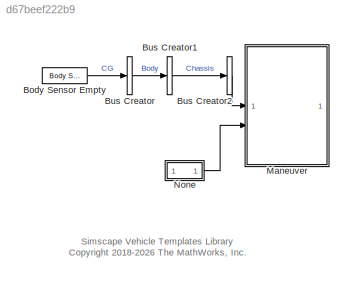
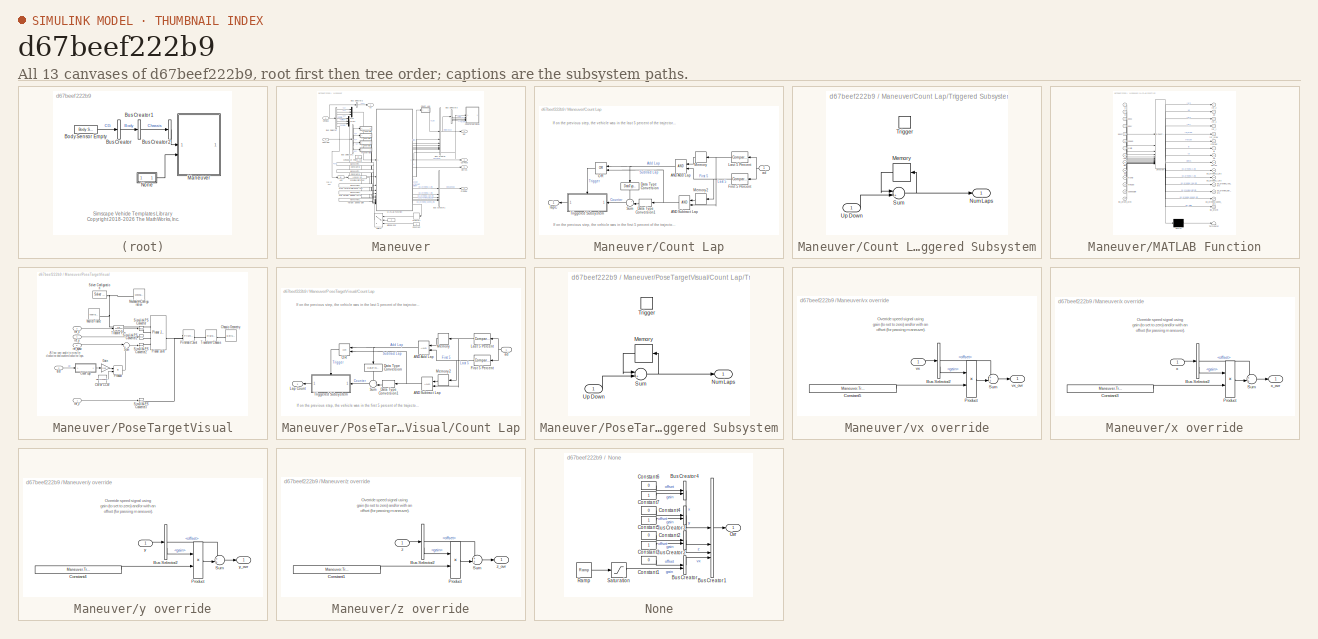
[diagram: thumbnail index - all 13 canvases of the model, root first then tree order]
MODEL slx_d67beef222b9
KIND library
CONFIG SolverName = VariableStepAuto
BLOCK [Reference] Body Sensor Empty  REF=sm_vehicle_utilities_lib/Body Sensor Empty  (lib defined in slx_7901a99a1966, slx_bde73e06ff5b)
  SourceBlock = sm_vehicle_utilities_lib/Body Sensor Empty
BLOCK [BusCreator] Bus Creator
  DisplayOption = bar
  InheritFromInputs = on
  Inputs = 1
BLOCK [BusCreator] Bus Creator1
  DisplayOption = bar
  InheritFromInputs = on
  Inputs = 1
BLOCK [BusCreator] Bus Creator2
  DisplayOption = bar
  InheritFromInputs = on
  Inputs = 1
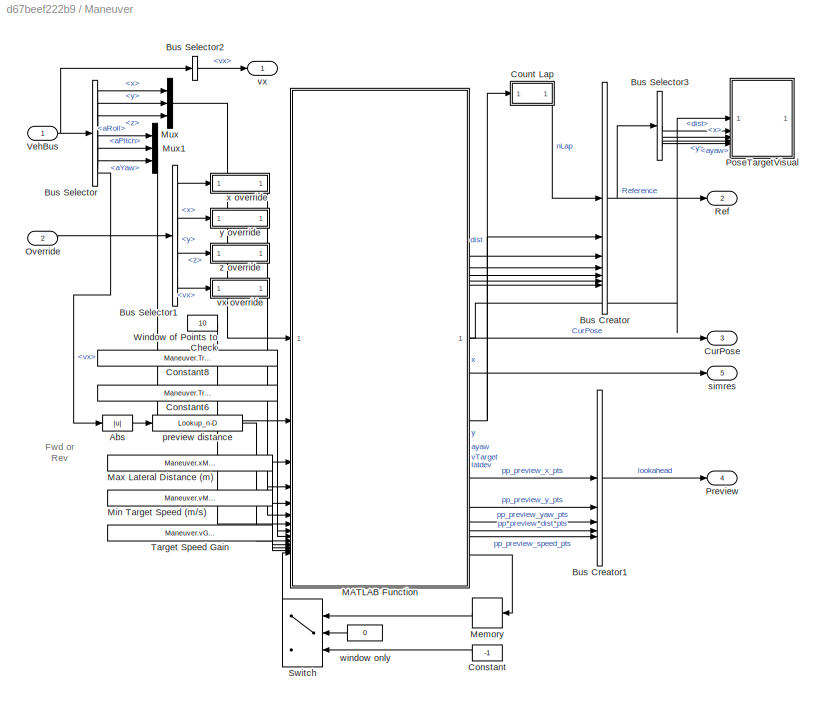
BLOCK [SubSystem] Maneuver
BLOCK [Abs] Maneuver/Abs
  SaturateOnIntegerOverflow = off
  ZeroCross = off
BLOCK [BusCreator] Maneuver/Bus Creator
  DisplayOption = bar
  InheritFromInputs = on
  Inputs = 7
BLOCK [BusCreator] Maneuver/Bus Creator1
  DisplayOption = bar
  InheritFromInputs = on
  Inputs = 5
BLOCK [BusSelector] Maneuver/Bus Selector
  OutputSignals = World.x,World.y,World.z,World.aRoll,World.aPitch,World.aYaw,Chassis.Body.CG.vx
BLOCK [BusSelector] Maneuver/Bus Selector1
  OutputSignals = x,y,z,vx
BLOCK [BusSelector] Maneuver/Bus Selector2
  OutputSignals = Chassis.Body.CG.vx
BLOCK [BusSelector] Maneuver/Bus Selector3
  OutputSignals = dist,x,y,ayaw
BLOCK [Constant] Maneuver/Constant
  Value = -1
BLOCK [Constant] Maneuver/Constant6
  Value = Maneuver.Trajectory.xTrajectory.Value
BLOCK [Constant] Maneuver/Constant8
  Value = Maneuver.Trajectory.aYaw.Value
BLOCK [SubSystem] Maneuver/Count Lap
BLOCK [Logic] Maneuver/Count Lap/AND Add Lap
  AllPortsSameDT = off
  IconShape = distinctive
  OutDataTypeStr = boolean
BLOCK [Logic] Maneuver/Count Lap/AND Subtract Lap
  AllPortsSameDT = off
  IconShape = distinctive
  OutDataTypeStr = boolean
BLOCK [DataTypeConversion] Maneuver/Count Lap/Data Type Conversion
  NameLocation = left
  RndMeth = Floor
  SaturateOnIntegerOverflow = off
BLOCK [DataTypeConversion] Maneuver/Count Lap/Data Type Conversion1
  NameLocation = top
  RndMeth = Floor
  SaturateOnIntegerOverflow = off
BLOCK [Reference] Maneuver/Count Lap/First 5 Percent  REF=simulink/Logic and Bit
Operations/Compare
To Constant
  SourceBlock = simulink/Logic and Bit\nOperations/Compare\nTo Constant
  SourceType = Compare To Constant
BLOCK [Reference] Maneuver/Count Lap/Last 5 Percent  REF=simulink/Logic and Bit
Operations/Compare
To Constant
  NameLocation = top
  SourceBlock = simulink/Logic and Bit\nOperations/Compare\nTo Constant
  SourceType = Compare To Constant
BLOCK [Memory] Maneuver/Count Lap/Memory
  InitialCondition = false
  NameLocation = top
BLOCK [Memory] Maneuver/Count Lap/Memory2
  InitialCondition = false
  NameLocation = top
BLOCK [Logic] Maneuver/Count Lap/OR
  AllPortsSameDT = off
  IconShape = distinctive
  Operator = OR
  OutDataTypeStr = boolean
BLOCK [Sum] Maneuver/Count Lap/Sum
  Inputs = +-|
  NameLocation = top
BLOCK [SubSystem] Maneuver/Count Lap/Triggered Subsystem
  TreatAsAtomicUnit = on
BLOCK [Memory] Maneuver/Count Lap/Triggered Subsystem/Memory
  InheritSampleTime = on
  NameLocation = top
BLOCK [Outport] Maneuver/Count Lap/Triggered Subsystem/Num Laps
  VectorParamsAs1DForOutWhenUnconnected = off
BLOCK [Sum] Maneuver/Count Lap/Triggered Subsystem/Sum
  Inputs = |++
BLOCK [TriggerPort] Maneuver/Count Lap/Triggered Subsystem/Trigger
  StatesWhenEnabling = held
  VariantControl = Variant
  ZeroCross = off
BLOCK [Inport] Maneuver/Count Lap/Triggered Subsystem/Up Down
BLOCK [Inport] Maneuver/Count Lap/ad
BLOCK [Outport] Maneuver/Count Lap/lapC
  VectorParamsAs1DForOutWhenUnconnected = off
BLOCK [Outport] Maneuver/CurPose
  Port = 3
  VectorParamsAs1DForOutWhenUnconnected = off
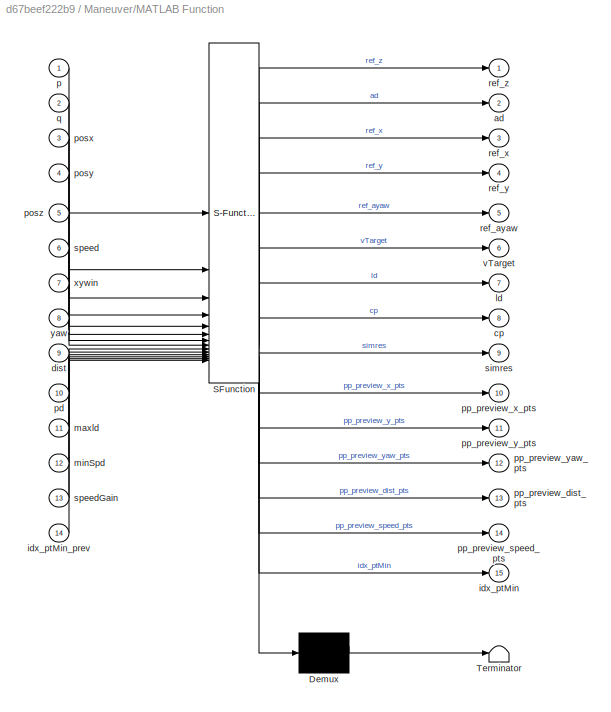
BLOCK [SubSystem] Maneuver/MATLAB Function
  ErrorFcn = Stateflow.Translate.translate
  PermitHierarchicalResolution = ExplicitOnly
  SFBlockType = MATLAB Function
  SystemSampleTime = 0.1
BLOCK [Demux] Maneuver/MATLAB Function/ Demux 
  Outputs = 1
BLOCK [S-Function] Maneuver/MATLAB Function/ SFunction 
  EnableBusSupport = off
  FunctionName = sf_sfun
  Parameters = nPreviewPoints
  PortCounts = [14 16]
  SFcnIsStateOwnerBlock = off
  SFunctionDeploymentMode = off
  Tag = Stateflow S-Function 1
BLOCK [Terminator] Maneuver/MATLAB Function/ Terminator 
BLOCK [Outport] Maneuver/MATLAB Function/ad
  Port = 2
  VectorParamsAs1DForOutWhenUnconnected = off
BLOCK [Outport] Maneuver/MATLAB Function/cp
  Port = 8
  VectorParamsAs1DForOutWhenUnconnected = off
BLOCK [Inport] Maneuver/MATLAB Function/dist
  Port = 9
BLOCK [Outport] Maneuver/MATLAB Function/idx_ptMin
  Port = 15
  VectorParamsAs1DForOutWhenUnconnected = off
BLOCK [Inport] Maneuver/MATLAB Function/idx_ptMin_prev
  Port = 14
BLOCK [Outport] Maneuver/MATLAB Function/ld
  Port = 7
  VectorParamsAs1DForOutWhenUnconnected = off
BLOCK [Inport] Maneuver/MATLAB Function/maxld
  Port = 11
BLOCK [Inport] Maneuver/MATLAB Function/minSpd
  Port = 12
BLOCK [Inport] Maneuver/MATLAB Function/p
BLOCK [Inport] Maneuver/MATLAB Function/pd
  Port = 10
BLOCK [Inport] Maneuver/MATLAB Function/posx
  Port = 3
BLOCK [Inport] Maneuver/MATLAB Function/posy
  Port = 4
BLOCK [Inport] Maneuver/MATLAB Function/posz
  Port = 5
BLOCK [Outport] Maneuver/MATLAB Function/pp_preview_dist_pts
  Port = 13
BLOCK [Outport] Maneuver/MATLAB Function/pp_preview_speed_pts
  Port = 14
BLOCK [Outport] Maneuver/MATLAB Function/pp_preview_x_pts
  Port = 10
BLOCK [Outport] Maneuver/MATLAB Function/pp_preview_y_pts
  Port = 11
BLOCK [Outport] Maneuver/MATLAB Function/pp_preview_yaw_pts
  Port = 12
BLOCK [Inport] Maneuver/MATLAB Function/q
  Port = 2
BLOCK [Outport] Maneuver/MATLAB Function/ref_ayaw
  Port = 5
  VectorParamsAs1DForOutWhenUnconnected = off
BLOCK [Outport] Maneuver/MATLAB Function/ref_x
  Port = 3
  VectorParamsAs1DForOutWhenUnconnected = off
BLOCK [Outport] Maneuver/MATLAB Function/ref_y
  Port = 4
  VectorParamsAs1DForOutWhenUnconnected = off
BLOCK [Outport] Maneuver/MATLAB Function/ref_z
  VectorParamsAs1DForOutWhenUnconnected = off
BLOCK [Outport] Maneuver/MATLAB Function/simres
  Port = 9
  VectorParamsAs1DForOutWhenUnconnected = off
BLOCK [Inport] Maneuver/MATLAB Function/speed
  Port = 6
BLOCK [Inport] Maneuver/MATLAB Function/speedGain
  Port = 13
BLOCK [Outport] Maneuver/MATLAB Function/vTarget
  Port = 6
  VectorParamsAs1DForOutWhenUnconnected = off
BLOCK [Inport] Maneuver/MATLAB Function/xywin
  Port = 7
BLOCK [Inport] Maneuver/MATLAB Function/yaw
  Port = 8
BLOCK [Constant] Maneuver/Max Lateral Distance (m)
  Value = Maneuver.xMaxLat.Value
BLOCK [Memory] Maneuver/Memory
  InitialCondition = -1
  NameLocation = top
BLOCK [Constant] Maneuver/Min Target Speed (m//s)
  Value = Maneuver.vMinTarget.Value
BLOCK [Mux] Maneuver/Mux
  DisplayOption = bar
  Inputs = 3
BLOCK [Mux] Maneuver/Mux1
  DisplayOption = bar
  Inputs = 3
BLOCK [Inport] Maneuver/Override
  Port = 2
BLOCK [SubSystem] Maneuver/PoseTargetVisual
BLOCK [Constant] Maneuver/PoseTargetVisual/CW or CCW
  Value = sign(Maneuver.Trajectory.aYaw.Value(end)-Maneuver.Trajectory.aYaw.Value(1))
BLOCK [Reference] Maneuver/PoseTargetVisual/Chassis Geometry  REF=sm_lib/Body Elements/Extruded Solid
  SourceBlock = sm_lib/Body Elements/Extruded Solid
  SourceType = Extruded Solid
BLOCK [SubSystem] Maneuver/PoseTargetVisual/Count Lap
BLOCK [Logic] Maneuver/PoseTargetVisual/Count Lap/AND Add Lap
  AllPortsSameDT = off
  IconShape = distinctive
  OutDataTypeStr = boolean
BLOCK [Logic] Maneuver/PoseTargetVisual/Count Lap/AND Subtract Lap
  AllPortsSameDT = off
  IconShape = distinctive
  OutDataTypeStr = boolean
BLOCK [DataTypeConversion] Maneuver/PoseTargetVisual/Count Lap/Data Type Conversion
  NameLocation = left
  RndMeth = Floor
  SaturateOnIntegerOverflow = off
BLOCK [DataTypeConversion] Maneuver/PoseTargetVisual/Count Lap/Data Type Conversion1
  NameLocation = top
  RndMeth = Floor
  SaturateOnIntegerOverflow = off
BLOCK [Reference] Maneuver/PoseTargetVisual/Count Lap/First 5 Percent  REF=simulink/Logic and Bit
Operations/Compare
To Constant
  SourceBlock = simulink/Logic and Bit\nOperations/Compare\nTo Constant
  SourceType = Compare To Constant
BLOCK [Outport] Maneuver/PoseTargetVisual/Count Lap/Lap Count
  VectorParamsAs1DForOutWhenUnconnected = off
BLOCK [Reference] Maneuver/PoseTargetVisual/Count Lap/Last 5 Percent  REF=simulink/Logic and Bit
Operations/Compare
To Constant
  NameLocation = top
  SourceBlock = simulink/Logic and Bit\nOperations/Compare\nTo Constant
  SourceType = Compare To Constant
BLOCK [Memory] Maneuver/PoseTargetVisual/Count Lap/Memory
  InitialCondition = false
  NameLocation = top
BLOCK [Memory] Maneuver/PoseTargetVisual/Count Lap/Memory2
  InitialCondition = true
  NameLocation = top
BLOCK [Logic] Maneuver/PoseTargetVisual/Count Lap/OR
  AllPortsSameDT = off
  IconShape = distinctive
  Operator = OR
  OutDataTypeStr = boolean
BLOCK [Sum] Maneuver/PoseTargetVisual/Count Lap/Sum
  Inputs = +-|
  NameLocation = top
BLOCK [SubSystem] Maneuver/PoseTargetVisual/Count Lap/Triggered Subsystem
  TreatAsAtomicUnit = on
BLOCK [Memory] Maneuver/PoseTargetVisual/Count Lap/Triggered Subsystem/Memory
  InheritSampleTime = on
  NameLocation = top
BLOCK [Outport] Maneuver/PoseTargetVisual/Count Lap/Triggered Subsystem/Num Laps
  VectorParamsAs1DForOutWhenUnconnected = off
BLOCK [Sum] Maneuver/PoseTargetVisual/Count Lap/Triggered Subsystem/Sum
  Inputs = |++
BLOCK [TriggerPort] Maneuver/PoseTargetVisual/Count Lap/Triggered Subsystem/Trigger
  StatesWhenEnabling = held
  VariantControl = Variant
  ZeroCross = off
BLOCK [Inport] Maneuver/PoseTargetVisual/Count Lap/Triggered Subsystem/Up Down
BLOCK [Inport] Maneuver/PoseTargetVisual/Count Lap/ad
BLOCK [Gain] Maneuver/PoseTargetVisual/Gain
  Gain = 2*pi
BLOCK [Reference] Maneuver/PoseTargetVisual/MechanismConfiguration  REF=sm_lib/Utilities/Mechanism
Configuration
  SourceBlock = sm_lib/Utilities/Mechanism\nConfiguration
  SourceType = Mechanism\nConfiguration
BLOCK [Reference] Maneuver/PoseTargetVisual/Planar Joint  REF=sm_lib/Joints/Planar Joint
  SourceBlock = sm_lib/Joints/Planar Joint
  SourceType = Planar Joint
BLOCK [Reference] Maneuver/PoseTargetVisual/Prismatic Joint  REF=sm_lib/Joints/Prismatic
Joint
  SourceBlock = sm_lib/Joints/Prismatic\nJoint
  SourceType = Prismatic\nJoint
BLOCK [Product] Maneuver/PoseTargetVisual/Product
BLOCK [Reference] Maneuver/PoseTargetVisual/Simulink-PS Converter  REF=nesl_utility/Simulink-PS
Converter
  SourceBlock = nesl_utility/Simulink-PS\nConverter
  SourceType = Simulink-PS\nConverter
BLOCK [Reference] Maneuver/PoseTargetVisual/Simulink-PS Converter1  REF=nesl_utility/Simulink-PS
Converter
  SourceBlock = nesl_utility/Simulink-PS\nConverter
  SourceType = Simulink-PS\nConverter
BLOCK [Reference] Maneuver/PoseTargetVisual/Simulink-PS Converter2  REF=nesl_utility/Simulink-PS
Converter
  SourceBlock = nesl_utility/Simulink-PS\nConverter
  SourceType = Simulink-PS\nConverter
BLOCK [Reference] Maneuver/PoseTargetVisual/Simulink-PS Converter3  REF=nesl_utility/Simulink-PS
Converter
  SourceBlock = nesl_utility/Simulink-PS\nConverter
  SourceType = Simulink-PS\nConverter
BLOCK [Reference] Maneuver/PoseTargetVisual/Solver Configuration  REF=nesl_utility/Solver
Configuration
  SourceBlock = nesl_utility/Solver\nConfiguration
  SourceType = Solver\nConfiguration
BLOCK [Sum] Maneuver/PoseTargetVisual/Sum
  Inputs = |++
BLOCK [TransferFcn] Maneuver/PoseTargetVisual/Transfer Fcn
  Denominator = [0.01 1]
BLOCK [Reference] Maneuver/PoseTargetVisual/Transform Chassis  REF=sm_lib/Frames and
Transforms/Rigid
Transform
  SourceBlock = sm_lib/Frames and\nTransforms/Rigid\nTransform
  SourceType = Rigid\nTransform
BLOCK [Reference] Maneuver/PoseTargetVisual/World Frame  REF=sm_lib/Frames and
Transforms/World Frame
  SourceBlock = sm_lib/Frames and\nTransforms/World Frame
  SourceType = World Frame
BLOCK [Inport] Maneuver/PoseTargetVisual/dist
  Port = 2
BLOCK [Inport] Maneuver/PoseTargetVisual/ref_ayaw
  Port = 5
BLOCK [Inport] Maneuver/PoseTargetVisual/ref_x
  Port = 3
BLOCK [Inport] Maneuver/PoseTargetVisual/ref_y
  Port = 4
BLOCK [Inport] Maneuver/PoseTargetVisual/ref_z
BLOCK [Outport] Maneuver/Preview
  Port = 4
  VectorParamsAs1DForOutWhenUnconnected = off
BLOCK [Outport] Maneuver/Ref
  Port = 2
  VectorParamsAs1DForOutWhenUnconnected = off
BLOCK [Switch] Maneuver/Switch
  Criteria = u2 > Threshold
  InputSameDT = off
  SaturateOnIntegerOverflow = off
BLOCK [Constant] Maneuver/Target Speed Gain
  Value = Maneuver.vGain.Value
BLOCK [Inport] Maneuver/VehBus
BLOCK [Constant] Maneuver/Window of Points to Check
  Value = 10
BLOCK [Lookup_n-D] Maneuver/preview distance
  BreakpointsForDimension1 = Maneuver.xPreview.v.Value
  InputPortMap = u0
  InternalRulePriority = Speed
  NumberOfTableDimensions = 1
  RndMeth = Simplest
  Table = Maneuver.xPreview.x.Value
BLOCK [Outport] Maneuver/simres
  Port = 5
  VectorParamsAs1DForOutWhenUnconnected = off
BLOCK [Outport] Maneuver/vx
  VectorParamsAs1DForOutWhenUnconnected = off
BLOCK [SubSystem] Maneuver/vx override
BLOCK [BusSelector] Maneuver/vx override/Bus Selector2
  OutputSignals = offset,gain
BLOCK [Constant] Maneuver/vx override/Constant5
  Value = Maneuver.Trajectory.vx.Value
BLOCK [Product] Maneuver/vx override/Product
BLOCK [Sum] Maneuver/vx override/Sum
  Inputs = ++|
BLOCK [Inport] Maneuver/vx override/vx
BLOCK [Outport] Maneuver/vx override/vx_ovr
  VectorParamsAs1DForOutWhenUnconnected = off
BLOCK [Constant] Maneuver/window only
  NameLocation = right
  Value = 0
BLOCK [SubSystem] Maneuver/x override
BLOCK [BusSelector] Maneuver/x override/Bus Selector2
  OutputSignals = offset,gain
BLOCK [Constant] Maneuver/x override/Constant3
  Value = Maneuver.Trajectory.x.Value
BLOCK [Product] Maneuver/x override/Product
BLOCK [Sum] Maneuver/x override/Sum
  Inputs = ++|
BLOCK [Inport] Maneuver/x override/x
BLOCK [Outport] Maneuver/x override/x_ovr
  VectorParamsAs1DForOutWhenUnconnected = off
BLOCK [SubSystem] Maneuver/y override
BLOCK [BusSelector] Maneuver/y override/Bus Selector2
  OutputSignals = offset,gain
BLOCK [Constant] Maneuver/y override/Constant4
  Value = Maneuver.Trajectory.y.Value
BLOCK [Product] Maneuver/y override/Product
BLOCK [Sum] Maneuver/y override/Sum
  Inputs = ++|
BLOCK [Inport] Maneuver/y override/y
BLOCK [Outport] Maneuver/y override/y_ovr
  VectorParamsAs1DForOutWhenUnconnected = off
BLOCK [SubSystem] Maneuver/z override
BLOCK [BusSelector] Maneuver/z override/Bus Selector2
  OutputSignals = offset,gain
BLOCK [Constant] Maneuver/z override/Constant1
  Value = Maneuver.Trajectory.z.Value
BLOCK [Product] Maneuver/z override/Product
BLOCK [Sum] Maneuver/z override/Sum
  Inputs = ++|
BLOCK [Inport] Maneuver/z override/z
BLOCK [Outport] Maneuver/z override/z_ovr
  VectorParamsAs1DForOutWhenUnconnected = off
BLOCK [SubSystem] None
  VariantControl = None
BLOCK [BusCreator] None/Bus Creator
  DisplayOption = bar
  InheritFromInputs = on
  Inputs = 2
BLOCK [BusCreator] None/Bus Creator1
  DisplayOption = bar
  InheritFromInputs = on
  Inputs = 4
BLOCK [BusCreator] None/Bus Creator2
  DisplayOption = bar
  InheritFromInputs = on
  Inputs = 2
BLOCK [BusCreator] None/Bus Creator3
  DisplayOption = bar
  InheritFromInputs = on
  Inputs = 2
BLOCK [BusCreator] None/Bus Creator4
  DisplayOption = bar
  InheritFromInputs = on
  Inputs = 2
BLOCK [Constant] None/Constant1
  Value = 0
BLOCK [Constant] None/Constant2
  Value = 0
BLOCK [Constant] None/Constant3
BLOCK [Constant] None/Constant4
  Value = 0
BLOCK [Constant] None/Constant5
BLOCK [Constant] None/Constant6
  Value = 0
BLOCK [Constant] None/Constant7
BLOCK [Outport] None/Ovr
  VectorParamsAs1DForOutWhenUnconnected = off
BLOCK [Reference] None/Ramp  REF=simulink/Sources/Ramp
  SourceBlock = simulink/Sources/Ramp
  SourceType = Ramp
BLOCK [Saturate] None/Saturation
  LowerLimit = 0
  UpperLimit = 1
  ZeroCross = off
ANNOTATION (root): Simscape Vehicle Templates Library <copyright redacted>
ANNOTATION Maneuver: Fwd or Rev
ANNOTATION Maneuver/Count Lap: If on the previous step, the vehicle was in the first 5 percent of the trajectory and now it is on the last 5 percent of the trajectory, decrement the number of laps.
ANNOTATION Maneuver/Count Lap: If on the previous step, the vehicle was in the last 5 percent of the trajectory and now it is on the first 5 percent of the trajectory, increment the number of laps.
ANNOTATION Maneuver/PoseTargetVisual: Allow yaw angle to wrap for clockwise and counterclockwise laps.
ANNOTATION Maneuver/PoseTargetVisual/Count Lap: If on the previous step, the vehicle was in the first 5 percent of the trajectory and now it is on the last 5 percent of the trajectory, decrement the number of laps.
ANNOTATION Maneuver/PoseTargetVisual/Count Lap: If on the previous step, the vehicle was in the last 5 percent of the trajectory and now it is on the first 5 percent of the trajectory, increment the number of laps.
ANNOTATION Maneuver/vx override: Override speed signal using gain (to set to zero) and/or with an offset (for passing maneuver).
ANNOTATION Maneuver/x override: Override speed signal using gain (to set to zero) and/or with an offset (for passing maneuver).
ANNOTATION Maneuver/y override: Override speed signal using gain (to set to zero) and/or with an offset (for passing maneuver).
ANNOTATION Maneuver/z override: Override speed signal using gain (to set to zero) and/or with an offset (for passing maneuver).
LINE Body Sensor Empty:1 -> Bus Creator:1
LINE Bus Creator1:1 -> Bus Creator2:1
LINE Bus Creator2:1 -> Maneuver:1
LINE Bus Creator:1 -> Bus Creator1:1
LINE None/Bus Creator1:1 -> None/Ovr:1
LINE None/Bus Creator2:1 -> None/Bus Creator1:3
LINE None/Bus Creator3:1 -> None/Bus Creator1:2
LINE None/Bus Creator4:1 -> None/Bus Creator1:1
LINE None/Bus Creator:1 -> None/Bus Creator1:4
LINE None/Constant1:1 -> None/Bus Creator:1
LINE None/Constant2:1 -> None/Bus Creator2:1
LINE None/Constant3:1 -> None/Bus Creator2:2
LINE None/Constant4:1 -> None/Bus Creator3:1
LINE None/Constant5:1 -> None/Bus Creator3:2
LINE None/Constant6:1 -> None/Bus Creator4:1
LINE None/Constant7:1 -> None/Bus Creator4:2
LINE None/Ramp:1 -> None/Saturation:1
LINE None/Saturation:1 -> None/Bus Creator:2
LINE None:1 -> Maneuver:2
CHART Maneuver/MATLAB Function states=1 transitions=1
  STATE_LABEL 'eML_blk_kernel()'
  STATE_LABEL 'SCRIPT:\nfunction [ref_z,ad,ref_x,ref_y,ref_ayaw,vTarget,ld,cp,  simres, ...\n          pp_preview_x_pts, pp_preview_y_pts, pp_preview_yaw_pts, pp_preview_dist_pts, pp_preview_speed_pts,idx_ptMin] = ...\n          getPoseCurRef(p,q,posx,posy,posz,speed,xywin,yaw,dist,pd, ...\n                        maxld, minSpd, speedGain, idx_ptMin_prev, nPreviewPoints)\n\n% This function determines the target pose f...<+3608ch>'
CHART  states=0 transitions=0
